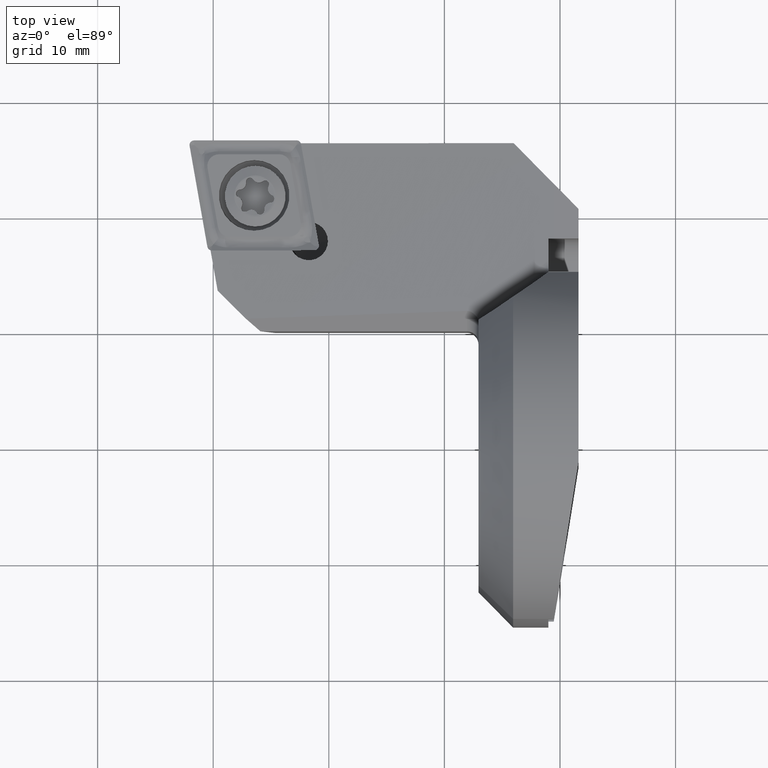
[diagram: clean part render]
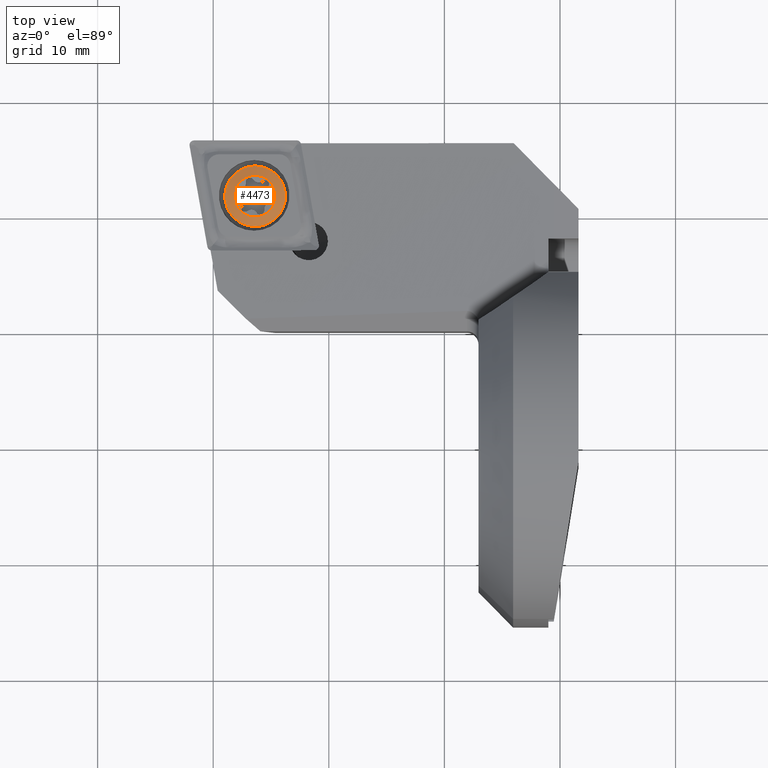
[diagram: same view with one face highlighted and labeled with its STEP entity id]
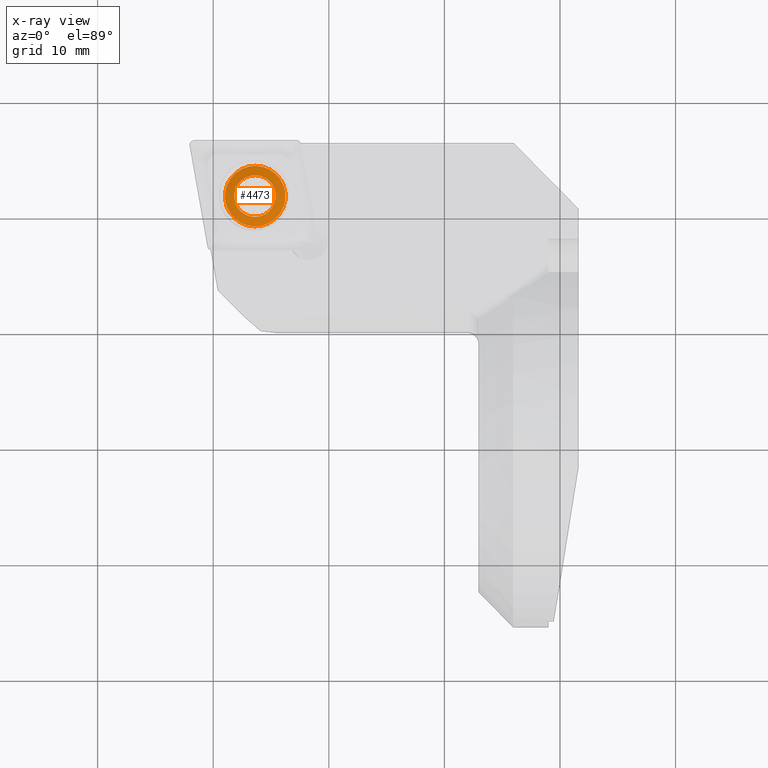
[diagram: x-ray of the same camera — body ghosted, the highlighted face saturated]
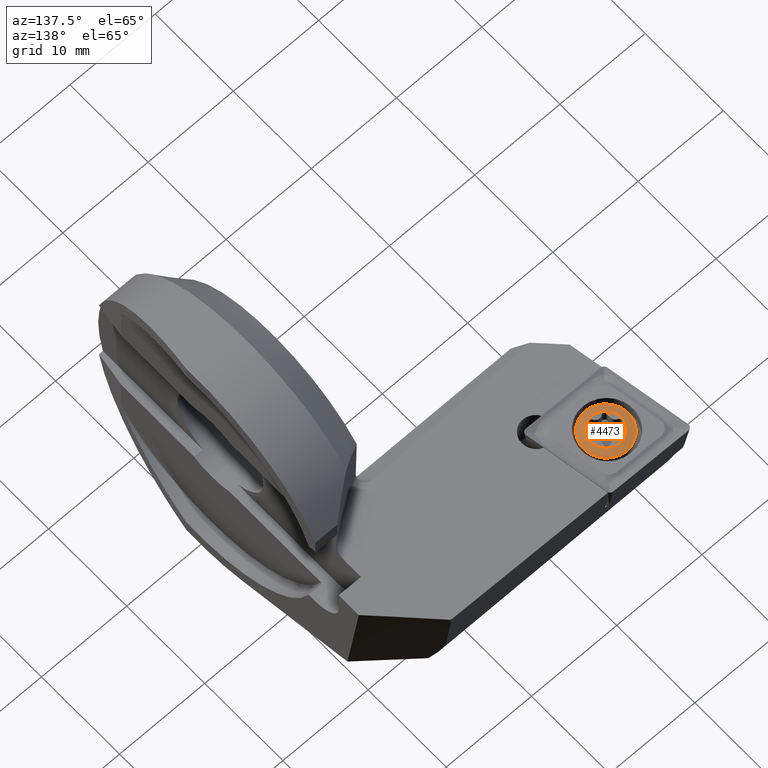
[diagram: same view with one face highlighted and labeled with its STEP entity id]
A machine part, top view. The second image highlights one B-rep face of the part: STEP entity #4473.
The next image is the same camera in x-ray: the body ghosted, the highlighted face saturated — about 0% of this face is hidden behind the body in this view.
A second angle (auxiliary view) of the same face is appended — the face is thin or edge-on in the first view.
In plain terms, the highlighted spherical surface has radius 7 mm.
Its self-contained STEP definition (entity closure, byte-faithful):
#171 = CIRCLE ( 'NONE', #4583, 2.624999999999997800 ) ;
#208 = VERTEX_POINT ( 'NONE', #1008 ) ;
#270 = DIRECTION ( 'NONE',  ( -1.239088197126299000E-016, 1.000000000000000000, -2.248201624865957400E-015 ) ) ;
#323 = VERTEX_POINT ( 'NONE', #1697 ) ;
#561 = CARTESIAN_POINT ( 'NONE',  ( -3.469446951953614200E-015, -4.163336342344337000E-014, -6.938893903907228400E-015 ) ) ;
#841 = ORIENTED_EDGE ( 'NONE', *, *, #3153, .T. ) ;
#904 = CARTESIAN_POINT ( 'NONE',  ( 6.764613810115149800, -5.551115123125782700E-014, -1.040834085586084300E-014 ) ) ;
#1008 = CARTESIAN_POINT ( 'NONE',  ( 0.2754401339063917200, -6.046552147864758800E-014, 2.624999999999997800 ) ) ;
#1187 = DIRECTION ( 'NONE',  ( -3.053113317719181000E-016, -1.887379141862769300E-015, 1.000000000000000000 ) ) ;
#1292 = DIRECTION ( 'NONE',  ( -2.775557561562910500E-017, -2.248201624865957400E-015, -1.000000000000000000 ) ) ;
#1513 = EDGE_CURVE ( 'NONE', #323, #323, #3804, .T. ) ;
#1646 = AXIS2_PLACEMENT_3D ( 'NONE', #561, #4031, #1187 ) ;
#1697 = CARTESIAN_POINT ( 'NONE',  ( -4.019007349143066200E-015, -4.503064587879635200E-014, 1.799999999999991200 ) ) ;
#1842 = ORIENTED_EDGE ( 'NONE', *, *, #1513, .F. ) ;
#2305 = AXIS2_PLACEMENT_3D ( 'NONE', #904, #1292, #270 ) ;
#2310 = SPHERICAL_SURFACE ( 'NONE', #2305, 7.000000000000000000 ) ;
#3001 = EDGE_LOOP ( 'NONE', ( #1842 ) ) ;
#3153 = EDGE_CURVE ( 'NONE', #208, #208, #171, .T. ) ;
#3185 = FACE_OUTER_BOUND ( 'NONE', #4091, .T. ) ;
#3573 = FACE_OUTER_BOUND ( 'NONE', #3001, .T. ) ;
#3748 = CARTESIAN_POINT ( 'NONE',  ( 0.2754401339063925500, -5.551115123125782700E-014, 0.0000000000000000000 ) ) ;
#3804 = CIRCLE ( 'NONE', #1646, 1.799999999999998000 ) ;
#4031 = DIRECTION ( 'NONE',  ( -1.000000000000000000, 1.717376241217026700E-016, 2.775557561562871600E-017 ) ) ;
#4091 = EDGE_LOOP ( 'NONE', ( #841 ) ) ;
#4101 = DIRECTION ( 'NONE',  ( -3.097720492815729600E-016, -1.887379141862768900E-015, 1.000000000000000000 ) ) ;
#4473 = ADVANCED_FACE ( 'NONE', ( #3573, #3185 ), #2310, .T. ) ;
#4474 = DIRECTION ( 'NONE',  ( -1.000000000000000000, 1.717376241217026700E-016, 2.775557561562871600E-017 ) ) ;
#4583 = AXIS2_PLACEMENT_3D ( 'NONE', #3748, #4474, #4101 ) ;